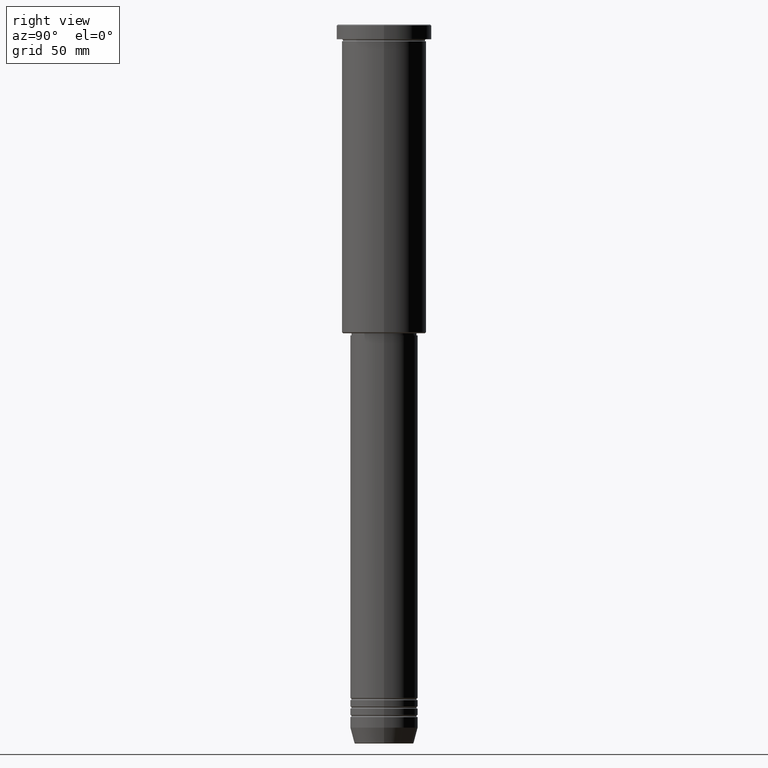
[diagram: clean part render]
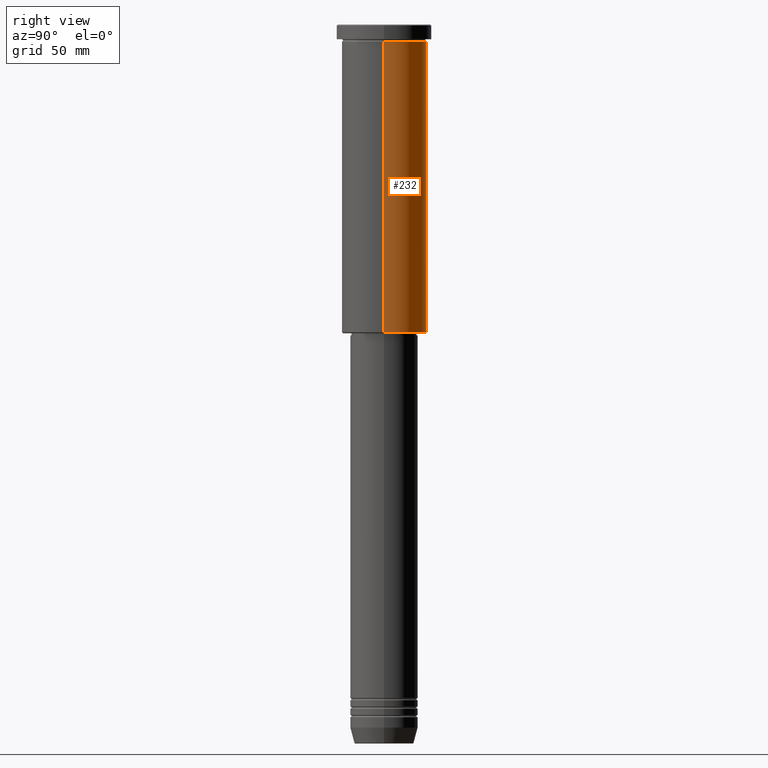
[diagram: same view with one face highlighted and labeled with its STEP entity id]
A machine part, right view. The second image highlights one B-rep face of the part: STEP entity #232.
In plain terms, the highlighted cylindrical surface (partial cylindrical patch) has radius 20 mm, axis along (-0, -0, 1).
Its self-contained STEP definition (entity closure, byte-faithful):
#42 = ORIENTED_EDGE ( 'NONE', *, *, #80, .T. ) ;
#56 = DIRECTION ( 'NONE',  ( -0.000000000000000000, -0.000000000000000000, 1.000000000000000000 ) ) ;
#80 = EDGE_CURVE ( 'NONE', #537, #1006, #1026, .T. ) ;
#130 = ORIENTED_EDGE ( 'NONE', *, *, #269, .T. ) ;
#199 = VECTOR ( 'NONE', #302, 1000.000000000000000 ) ;
#221 = AXIS2_PLACEMENT_3D ( 'NONE', #1141, #1145, #595 ) ;
#225 = FACE_OUTER_BOUND ( 'NONE', #862, .T. ) ;
#231 = CARTESIAN_POINT ( 'NONE',  ( 20.00000000000000355, 0.000000000000000000, 0.000000000000000000 ) ) ;
#232 = ADVANCED_FACE ( 'NONE', ( #225 ), #858, .T. ) ;
#234 = ORIENTED_EDGE ( 'NONE', *, *, #963, .F. ) ;
#269 = EDGE_CURVE ( 'NONE', #748, #537, #1007, .T. ) ;
#281 = AXIS2_PLACEMENT_3D ( 'NONE', #410, #1146, #961 ) ;
#302 = DIRECTION ( 'NONE',  ( -0.000000000000000000, -0.000000000000000000, 1.000000000000000000 ) ) ;
#360 = VECTOR ( 'NONE', #56, 1000.000000000000000 ) ;
#394 = CARTESIAN_POINT ( 'NONE',  ( -20.00000000000000355, 2.449293598294706907E-15, -145.4999999999999716 ) ) ;
#410 = CARTESIAN_POINT ( 'NONE',  ( 0.000000000000000000, 0.000000000000000000, -7.999999999999994671 ) ) ;
#492 = ORIENTED_EDGE ( 'NONE', *, *, #511, .F. ) ;
#511 = EDGE_CURVE ( 'NONE', #748, #876, #1029, .T. ) ;
#537 = VERTEX_POINT ( 'NONE', #394 ) ;
#595 = DIRECTION ( 'NONE',  ( 1.000000000000000000, 0.000000000000000000, 0.000000000000000000 ) ) ;
#642 = CIRCLE ( 'NONE', #281, 20.00000000000000000 ) ;
#661 = AXIS2_PLACEMENT_3D ( 'NONE', #1054, #674, #969 ) ;
#674 = DIRECTION ( 'NONE',  ( -0.000000000000000000, -0.000000000000000000, 1.000000000000000000 ) ) ;
#748 = VERTEX_POINT ( 'NONE', #1041 ) ;
#853 = CARTESIAN_POINT ( 'NONE',  ( -20.00000000000000355, 2.449293598294706907E-15, 0.000000000000000000 ) ) ;
#858 = CYLINDRICAL_SURFACE ( 'NONE', #221, 20.00000000000000355 ) ;
#862 = EDGE_LOOP ( 'NONE', ( #130, #42, #234, #492 ) ) ;
#876 = VERTEX_POINT ( 'NONE', #998 ) ;
#961 = DIRECTION ( 'NONE',  ( 1.000000000000000000, 0.000000000000000000, 0.000000000000000000 ) ) ;
#963 = EDGE_CURVE ( 'NONE', #876, #1006, #642, .T. ) ;
#969 = DIRECTION ( 'NONE',  ( -1.000000000000000000, 0.000000000000000000, 0.000000000000000000 ) ) ;
#998 = CARTESIAN_POINT ( 'NONE',  ( 20.00000000000000000, 0.000000000000000000, -7.999999999999994671 ) ) ;
#1006 = VERTEX_POINT ( 'NONE', #1040 ) ;
#1007 = CIRCLE ( 'NONE', #661, 20.00000000000000355 ) ;
#1026 = LINE ( 'NONE', #853, #199 ) ;
#1029 = LINE ( 'NONE', #231, #360 ) ;
#1040 = CARTESIAN_POINT ( 'NONE',  ( -20.00000000000000000, 2.449293598294706513E-15, -7.999999999999994671 ) ) ;
#1041 = CARTESIAN_POINT ( 'NONE',  ( 20.00000000000000355, 0.000000000000000000, -145.4999999999999716 ) ) ;
#1054 = CARTESIAN_POINT ( 'NONE',  ( 0.000000000000000000, 0.000000000000000000, -145.4999999999999716 ) ) ;
#1141 = CARTESIAN_POINT ( 'NONE',  ( 0.000000000000000000, 0.000000000000000000, 0.000000000000000000 ) ) ;
#1145 = DIRECTION ( 'NONE',  ( -0.000000000000000000, -0.000000000000000000, 1.000000000000000000 ) ) ;
#1146 = DIRECTION ( 'NONE',  ( -0.000000000000000000, -0.000000000000000000, 1.000000000000000000 ) ) ;